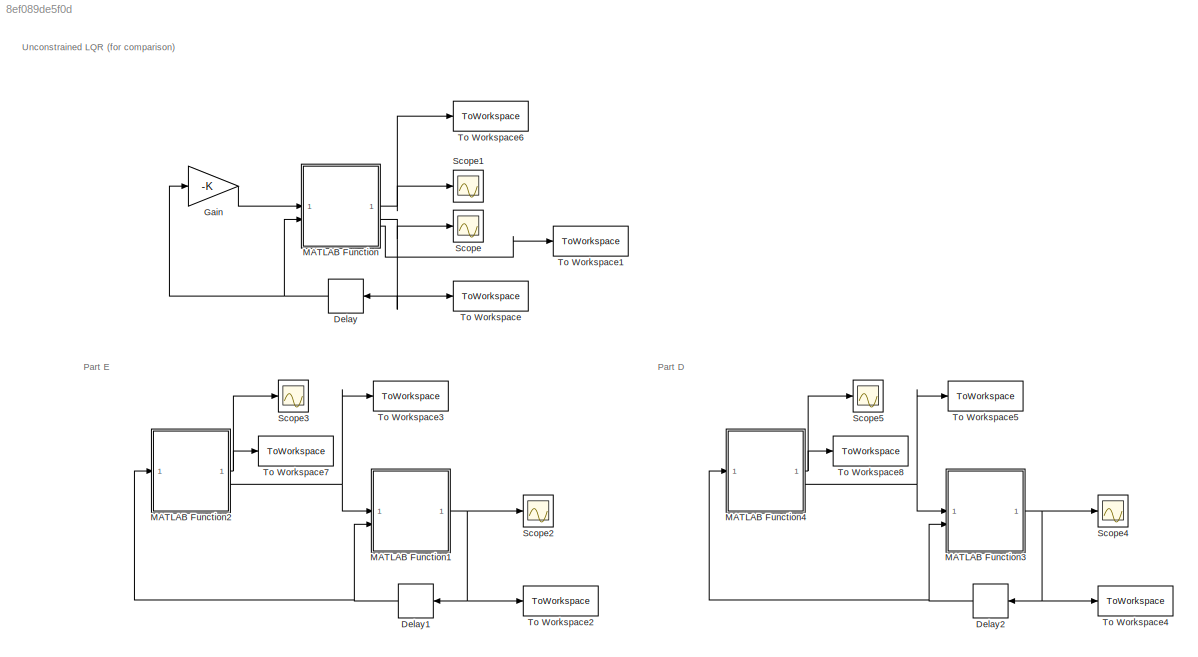
MODEL slx_8ef089de5f0d
KIND model
CONFIG AbsTol = auto
CONFIG EnableMultiTasking = off
CONFIG FixedStep = auto
CONFIG MaxStep = auto
CONFIG MinStep = auto
CONFIG RelTol = 1e-3
CONFIG SampleTimeConstraint = Unconstrained
CONFIG SolverName = VariableStepAuto
CONFIG StartTime = 0.0
CONFIG StopTime = 10
BLOCK [Delay] Delay
  DelayLength = 1
  InitialCondition = x0
  InputPortMap = u0
  SampleTime = .1
BLOCK [Delay] Delay1
  DelayLength = 1
  InitialCondition = x0
  InputPortMap = u0
  SampleTime = .1
BLOCK [Delay] Delay2
  DelayLength = 1
  InitialCondition = x0
  InputPortMap = u0
  SampleTime = .1
BLOCK [Gain] Gain
  Gain = -K
  Multiplication = Matrix(K*u)
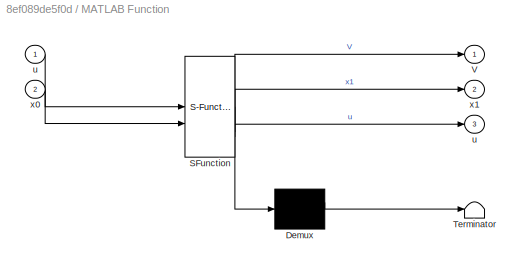
BLOCK [SubSystem] MATLAB Function
  ErrorFcn = Stateflow.Translate.translate
  PermitHierarchicalResolution = ExplicitOnly
  SFBlockType = MATLAB Function
  TreatAsAtomicUnit = on
BLOCK [Demux] MATLAB Function/ Demux 
  Outputs = 1
BLOCK [S-Function] MATLAB Function/ SFunction 
  EnableBusSupport = on
  FunctionName = sf_sfun
  Parameters = A,B,Gu,Gx,K,P,Q,R,ref
  PortCounts = [2 4]
  SFcnIsStateOwnerBlock = off
  SFunctionDeploymentMode = off
  Tag = Stateflow S-Function 2
BLOCK [Terminator] MATLAB Function/ Terminator 
BLOCK [Outport] MATLAB Function/V
BLOCK [Outport] MATLAB Function/u
  Port = 3
BLOCK [Inport] MATLAB Function/u 
BLOCK [Inport] MATLAB Function/x0
  Port = 2
BLOCK [Outport] MATLAB Function/x1
  Port = 2
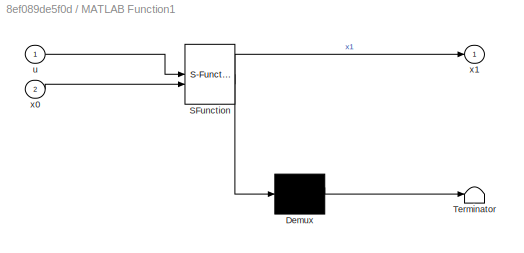
BLOCK [SubSystem] MATLAB Function1
  ErrorFcn = Stateflow.Translate.translate
  PermitHierarchicalResolution = ExplicitOnly
  SFBlockType = MATLAB Function
  TreatAsAtomicUnit = on
BLOCK [Demux] MATLAB Function1/ Demux 
  Outputs = 1
BLOCK [S-Function] MATLAB Function1/ SFunction 
  EnableBusSupport = on
  FunctionName = sf_sfun
  Parameters = A,B
  PortCounts = [2 2]
  SFcnIsStateOwnerBlock = off
  SFunctionDeploymentMode = off
  Tag = Stateflow S-Function 1
BLOCK [Terminator] MATLAB Function1/ Terminator 
BLOCK [Inport] MATLAB Function1/u
BLOCK [Inport] MATLAB Function1/x0
  Port = 2
BLOCK [Outport] MATLAB Function1/x1
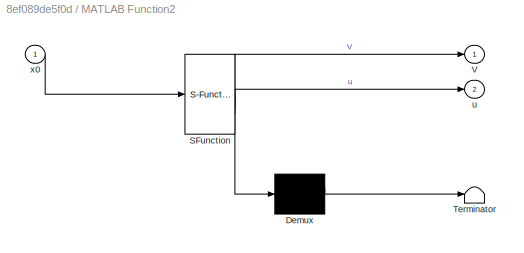
BLOCK [SubSystem] MATLAB Function2
  ErrorFcn = Stateflow.Translate.translate
  PermitHierarchicalResolution = ExplicitOnly
  SFBlockType = MATLAB Function
  TreatAsAtomicUnit = on
BLOCK [Demux] MATLAB Function2/ Demux 
  Outputs = 1
BLOCK [S-Function] MATLAB Function2/ SFunction 
  EnableBusSupport = on
  FunctionName = sf_sfun
  Parameters = E,Gu,Gx,H,N,Ov,Ox,P,Q,R,Y,f,fnew,gx,oy,ref,v,yc,yx
  PortCounts = [1 3]
  SFcnIsStateOwnerBlock = off
  SFunctionDeploymentMode = off
  Tag = Stateflow S-Function 3
BLOCK [Terminator] MATLAB Function2/ Terminator 
BLOCK [Outport] MATLAB Function2/V
BLOCK [Outport] MATLAB Function2/u
  Port = 2
BLOCK [Inport] MATLAB Function2/x0
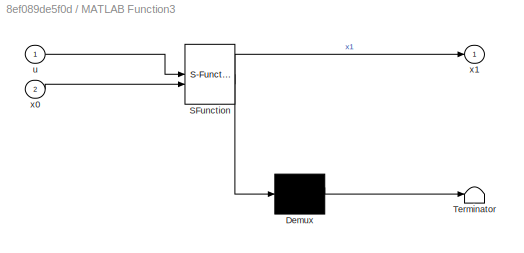
BLOCK [SubSystem] MATLAB Function3
  ErrorFcn = Stateflow.Translate.translate
  PermitHierarchicalResolution = ExplicitOnly
  SFBlockType = MATLAB Function
  TreatAsAtomicUnit = on
BLOCK [Demux] MATLAB Function3/ Demux 
  Outputs = 1
BLOCK [S-Function] MATLAB Function3/ SFunction 
  EnableBusSupport = on
  FunctionName = sf_sfun
  Parameters = A,B
  PortCounts = [2 2]
  SFcnIsStateOwnerBlock = off
  SFunctionDeploymentMode = off
  Tag = Stateflow S-Function 4
BLOCK [Terminator] MATLAB Function3/ Terminator 
BLOCK [Inport] MATLAB Function3/u
BLOCK [Inport] MATLAB Function3/x0
  Port = 2
BLOCK [Outport] MATLAB Function3/x1
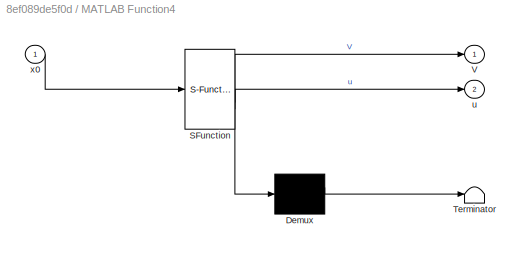
BLOCK [SubSystem] MATLAB Function4
  ErrorFcn = Stateflow.Translate.translate
  PermitHierarchicalResolution = ExplicitOnly
  SFBlockType = MATLAB Function
  TreatAsAtomicUnit = on
BLOCK [Demux] MATLAB Function4/ Demux 
  Outputs = 1
BLOCK [S-Function] MATLAB Function4/ SFunction 
  EnableBusSupport = on
  FunctionName = sf_sfun
  Parameters = E,Gu,Gx,H,N,Ov,Ox,P,Q,R,Y,f,fnew,gx,oy,ref,v,yc,yx
  PortCounts = [1 3]
  SFcnIsStateOwnerBlock = off
  SFunctionDeploymentMode = off
  Tag = Stateflow S-Function 5
BLOCK [Terminator] MATLAB Function4/ Terminator 
BLOCK [Outport] MATLAB Function4/V
BLOCK [Outport] MATLAB Function4/u
  Port = 2
BLOCK [Inport] MATLAB Function4/x0
BLOCK [Scope] Scope
  Floating = off
  NumInputPorts = 1
  ScopeSpecificationString = Simulink.scopes.TimeScopeBlockCfg('CurrentConfiguration', extmgr.ConfigurationSet(extmgr.Configuration('Core','General UI',true),extmgr.Configuration('Core','Source UI',true),extmgr.Configuration('Sources','WiredSimulink',true),extmgr.Configuration('Visuals','Time Domain',true,'SerializedDisplays',{struct('MinYLimReal','-6.31486','MaxYLimReal','3.03498','YLabelReal','','MinYLimMag','0.00000','MaxY...<+1417ch>
BLOCK [Scope] Scope1
  Floating = off
  NumInputPorts = 1
  ScopeSpecificationString = Simulink.scopes.TimeScopeBlockCfg('CurrentConfiguration', extmgr.ConfigurationSet(extmgr.Configuration('Core','General UI',true),extmgr.Configuration('Core','Source UI',true),extmgr.Configuration('Sources','WiredSimulink',true,'DataLoggingVariableName','ScopeData1'),extmgr.Configuration('Visuals','Time Domain',true,'SerializedDisplays',{struct('MinYLimReal','-2.06006','MaxYLimReal','18.54054','YLa...<+1434ch>
BLOCK [Scope] Scope2
  Floating = off
  NumInputPorts = 1
  ScopeSpecificationString = Simulink.scopes.TimeScopeBlockCfg('CurrentConfiguration', extmgr.ConfigurationSet(extmgr.Configuration('Core','General UI',true),extmgr.Configuration('Core','Source UI',true),extmgr.Configuration('Sources','WiredSimulink',true,'DataLoggingVariableName','ScopeData2'),extmgr.Configuration('Visuals','Time Domain',true,'SerializedDisplays',{struct('MinYLimReal','-0.74598','MaxYLimReal','5.84905','YLab...<+1502ch>
BLOCK [Scope] Scope3
  Floating = off
  NumInputPorts = 1
  ScopeSpecificationString = Simulink.scopes.TimeScopeBlockCfg('CurrentConfiguration', extmgr.ConfigurationSet(extmgr.Configuration('Core','General UI',true),extmgr.Configuration('Core','Source UI',true),extmgr.Configuration('Sources','WiredSimulink',true,'DataLoggingVariableName','ScopeData3'),extmgr.Configuration('Visuals','Time Domain',true,'SerializedDisplays',{struct('MinYLimReal','-25.87123','MaxYLimReal','232.84311','Y...<+1491ch>
BLOCK [Scope] Scope4
  Floating = off
  NumInputPorts = 1
  ScopeSpecificationString = Simulink.scopes.TimeScopeBlockCfg('CurrentConfiguration', extmgr.ConfigurationSet(extmgr.Configuration('Core','General UI',true),extmgr.Configuration('Core','Source UI',true),extmgr.Configuration('Sources','WiredSimulink',true,'DataLoggingVariableName','ScopeData1'),extmgr.Configuration('Visuals','Time Domain',true,'SerializedDisplays',{struct('MinYLimReal','-3.61173','MaxYLimReal','2.59623','YLab...<+1413ch>
BLOCK [Scope] Scope5
  Floating = off
  NumInputPorts = 1
  ScopeSpecificationString = Simulink.scopes.TimeScopeBlockCfg('CurrentConfiguration', extmgr.ConfigurationSet(extmgr.Configuration('Core','General UI',true),extmgr.Configuration('Core','Source UI',true),extmgr.Configuration('Sources','WiredSimulink',true,'DataLoggingVariableName','ScopeData2'),extmgr.Configuration('Visuals','Time Domain',true,'SerializedDisplays',{struct('MinYLimReal','-2.06006','MaxYLimReal','18.54054','YLa...<+1435ch>
BLOCK [ToWorkspace] To Workspace
  FixptAsFi = on
  MaxDataPoints = inf
  SampleTime = -1
  VariableName = x0
BLOCK [ToWorkspace] To Workspace1
  FixptAsFi = on
  MaxDataPoints = inf
  SampleTime = -1
  VariableName = u0
BLOCK [ToWorkspace] To Workspace2
  FixptAsFi = on
  MaxDataPoints = inf
  SampleTime = -1
  VariableName = x
BLOCK [ToWorkspace] To Workspace3
  FixptAsFi = on
  MaxDataPoints = inf
  SampleTime = -1
  VariableName = u
BLOCK [ToWorkspace] To Workspace4
  FixptAsFi = on
  MaxDataPoints = inf
  SampleTime = -1
  VariableName = x1
BLOCK [ToWorkspace] To Workspace5
  FixptAsFi = on
  MaxDataPoints = inf
  SampleTime = -1
  VariableName = u1
BLOCK [ToWorkspace] To Workspace6
  FixptAsFi = on
  MaxDataPoints = inf
  SampleTime = -1
  VariableName = V0
BLOCK [ToWorkspace] To Workspace7
  FixptAsFi = on
  MaxDataPoints = inf
  SampleTime = -1
  VariableName = V
BLOCK [ToWorkspace] To Workspace8
  FixptAsFi = on
  MaxDataPoints = inf
  SampleTime = -1
  VariableName = V1
ANNOTATION (root): Part D
ANNOTATION (root): Part E
ANNOTATION (root): Unconstrained LQR (for comparison)
NET Delay1:1 -> MATLAB Function1:2, MATLAB Function2:1
NET Delay2:1 -> MATLAB Function3:2, MATLAB Function4:1
NET Delay:1 -> Gain:1, MATLAB Function:2
LINE Gain:1 -> MATLAB Function:1
NET MATLAB Function1:1 -> Delay1:1, Scope2:1, To Workspace2:1
NET MATLAB Function2:1 -> Scope3:1, To Workspace7:1
NET MATLAB Function2:2 -> MATLAB Function1:1, To Workspace3:1
NET MATLAB Function3:1 -> Delay2:1, Scope4:1, To Workspace4:1
NET MATLAB Function4:1 -> Scope5:1, To Workspace8:1
NET MATLAB Function4:2 -> MATLAB Function3:1, To Workspace5:1
NET MATLAB Function:1 -> Scope1:1, To Workspace6:1
NET MATLAB Function:2 -> Delay:1, Scope:1, To Workspace:1
LINE MATLAB Function:3 -> To Workspace1:1
note: NET lines group one-source signal fan-out (src -> all destinations, sorted); 1:1 wires keep LINE
CHART MATLAB Function1 states=1 transitions=1
  STATE_LABEL 'eML_blk_kernel()'
  STATE_LABEL 'SCRIPT:\nfunction x1  = fcn(u,x0,A,B)\n\nx1 = A*x0+B*u;\n\nend\n'
CHART MATLAB Function states=1 transitions=1
  STATE_LABEL 'eML_blk_kernel()'
  STATE_LABEL "SCRIPT:\nfunction [V,x1, u] = fcn(u,x0,A,B,P,Gx, Gu, ref, K, R, Q)\nu = Gu*ref + K*(Gx*ref)+u;\n% u = Gu*ref -K*(x0-Gx*ref);\nx1 = A*x0+B*u;\n\nV = 0.5*(x0-Gx*ref)'*P*(x0-Gx*ref);\n\nend\n\n"
CHART MATLAB Function2 states=1 transitions=1
  STATE_LABEL 'eML_blk_kernel()'
  STATE_LABEL "SCRIPT:\nfunction [V,u]  = fcn(x0,H,f,E,gx,Q,Y,yx,yc,Ox,Ov,oy, v, fnew, Gu, Gx, ref, N, R, P)\ncoder.extrinsic('quadprog');\ncoder.extrinsic('optimoptions');\n\n% z  = f;\nz = -fnew*v;\nz = quadprog(H,-fnew*v,[Y;Ox],[yc+yx*x0;oy-Ov*v],E,gx*x0,[],[],[],optimoptions('quadprog','Display','none'));\n% z = quadprog(H,-fnew*v,[],[],E,gx*x0,[],[],[],optimoptions('quadprog','Display','none'));\n\nV = 1/2*(x0-Gx*ref...<+116ch>"
CHART MATLAB Function3 states=1 transitions=1
  STATE_LABEL 'eML_blk_kernel()'
  STATE_LABEL 'SCRIPT:\nfunction x1  = fcn(u,x0,A,B)\n\nx1 = A*x0+B*u;\n\nend\n'
CHART MATLAB Function4 states=1 transitions=1
  STATE_LABEL 'eML_blk_kernel()'
  STATE_LABEL "SCRIPT:\nfunction [V,u]  = fcn(x0,H,f,E,gx,Q,Y,yx,yc,Ox,Ov,oy, v, fnew, Gx, Gu, ref, N, P, R)\ncoder.extrinsic('quadprog');\ncoder.extrinsic('optimoptions');\n\n% z  = f;\nz = -fnew*v;\n% z = quadprog(H,-fnew*v,[Y;Ox],[yc+yx*x0;oy-Ov*v],E,gx*x0,[],[],[],optimoptions('quadprog','Display','none'));\nz = quadprog(H,-fnew*v,[],[],E,gx*x0,[],[],[],optimoptions('quadprog','Display','none'));\n\nV = 1/2*(x0-Gx*ref...<+125ch>"
CHART  states=0 transitions=0
CHART  states=0 transitions=0
CHART  states=0 transitions=0
CHART  states=0 transitions=0
CHART  states=0 transitions=0
